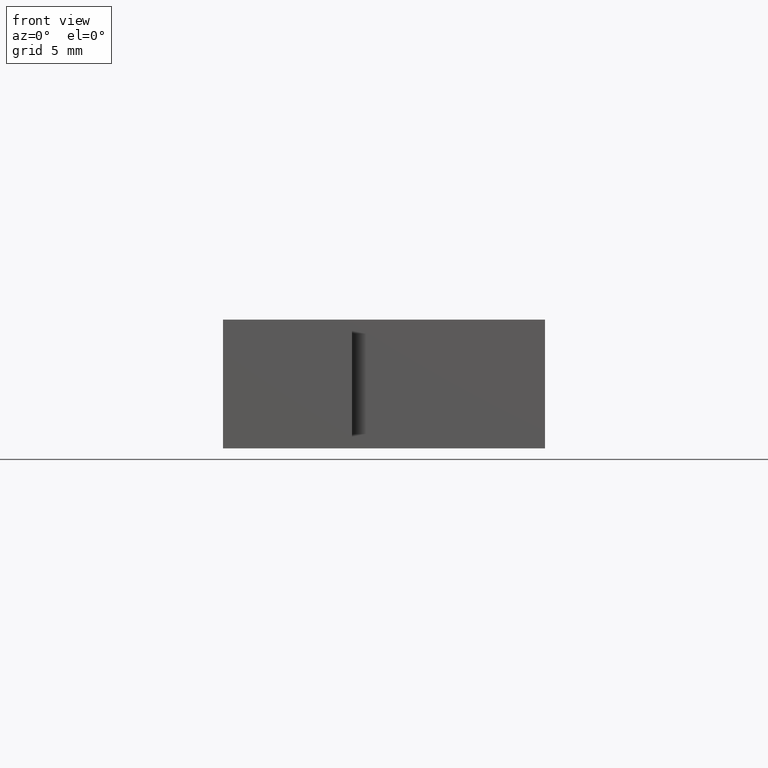
[diagram: clean part render]
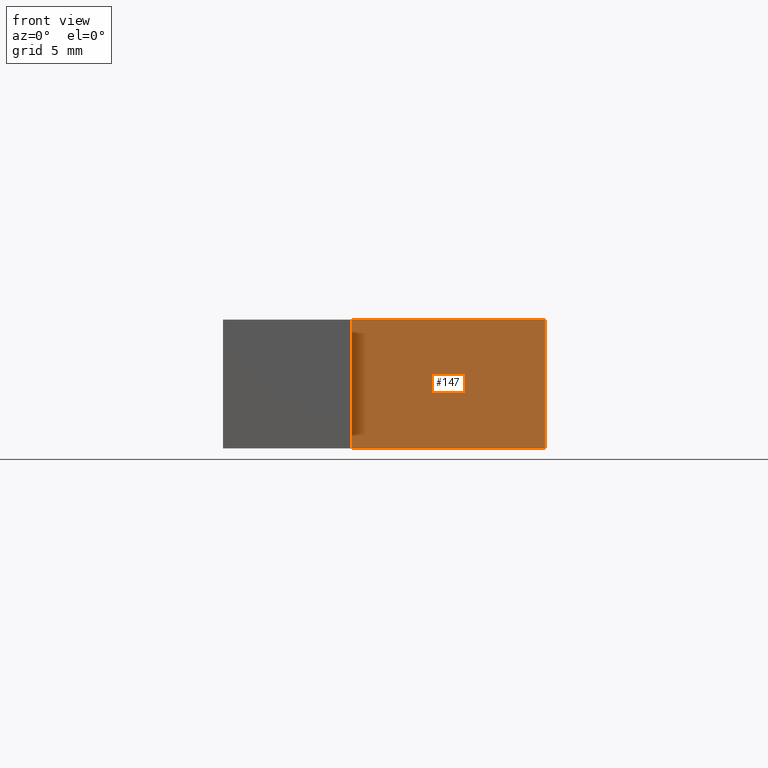
[diagram: same view with one face highlighted and labeled with its STEP entity id]
A machine part, front view. The second image highlights one B-rep face of the part: STEP entity #147.
In plain terms, the highlighted planar face has unit normal (0, -1, 0).
Its self-contained STEP definition (entity closure, byte-faithful):
#21=FACE_OUTER_BOUND('',#29,.T.);
#29=EDGE_LOOP('',(#123,#124,#125,#126));
#32=LINE('',#222,#50);
#39=LINE('',#235,#57);
#47=LINE('',#251,#65);
#48=LINE('',#253,#66);
#50=VECTOR('',#185,10.);
#57=VECTOR('',#194,10.);
#65=VECTOR('',#210,10.);
#66=VECTOR('',#213,10.);
#67=VERTEX_POINT('',#218);
#69=VERTEX_POINT('',#221);
#73=VERTEX_POINT('',#231);
#78=VERTEX_POINT('',#249);
#80=EDGE_CURVE('',#69,#67,#32,.T.);
#87=EDGE_CURVE('',#73,#69,#39,.T.);
#95=EDGE_CURVE('',#67,#78,#47,.T.);
#96=EDGE_CURVE('',#78,#73,#48,.T.);
#123=ORIENTED_EDGE('',*,*,#96,.T.);
#124=ORIENTED_EDGE('',*,*,#87,.T.);
#125=ORIENTED_EDGE('',*,*,#80,.T.);
#126=ORIENTED_EDGE('',*,*,#95,.T.);
#139=PLANE('',#178);
#147=ADVANCED_FACE('',(#21),#139,.T.);
#178=AXIS2_PLACEMENT_3D('',#252,#211,#212);
#185=DIRECTION('',(1.,1.66533453693773E-16,0.));
#194=DIRECTION('',(0.,0.,-1.));
#210=DIRECTION('',(0.,0.,1.));
#211=DIRECTION('center_axis',(1.66533453693773E-16,-1.,0.));
#212=DIRECTION('ref_axis',(0.,0.,-1.));
#213=DIRECTION('',(-1.,-1.66533453693773E-16,0.));
#218=CARTESIAN_POINT('',(6.62671587336665E-15,2.,-5.));
#221=CARTESIAN_POINT('',(-15.,2.,-5.));
#222=CARTESIAN_POINT('',(6.62671587336665E-15,2.,-5.));
#231=CARTESIAN_POINT('',(-15.,2.,5.));
#235=CARTESIAN_POINT('',(-15.,2.,0.));
#249=CARTESIAN_POINT('',(6.62671587336665E-15,2.,5.));
#251=CARTESIAN_POINT('',(6.62671587336665E-15,2.,0.));
#252=CARTESIAN_POINT('Origin',(6.62671587336665E-15,2.,0.));
#253=CARTESIAN_POINT('',(6.62671587336665E-15,2.,5.));